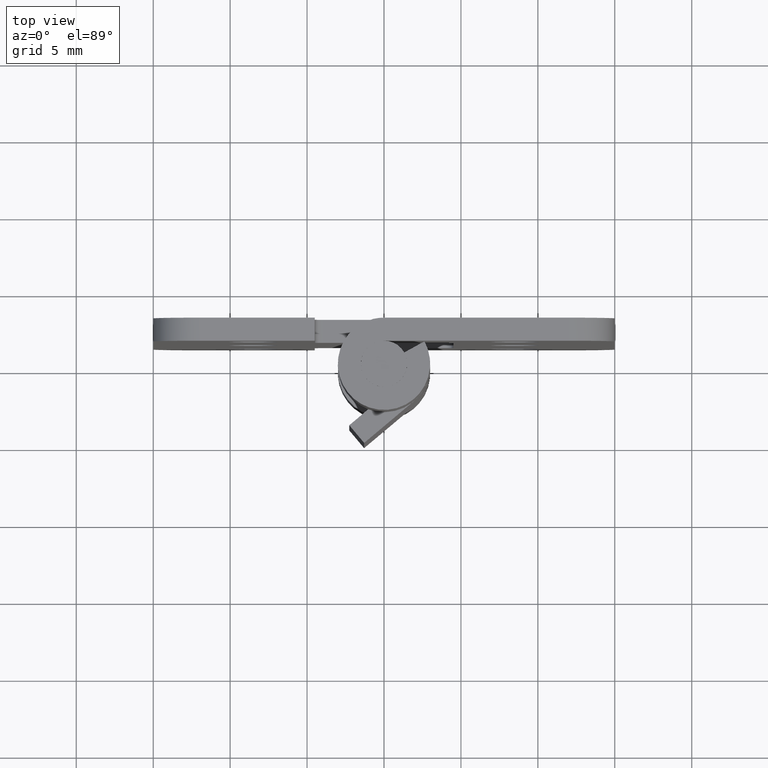
[diagram: clean part render]
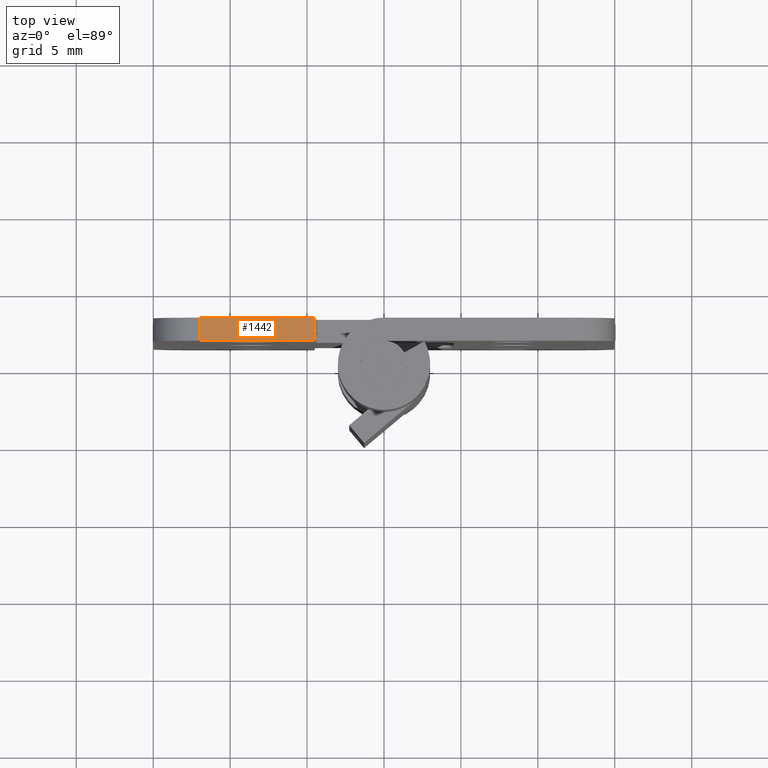
[diagram: same view with one face highlighted and labeled with its STEP entity id]
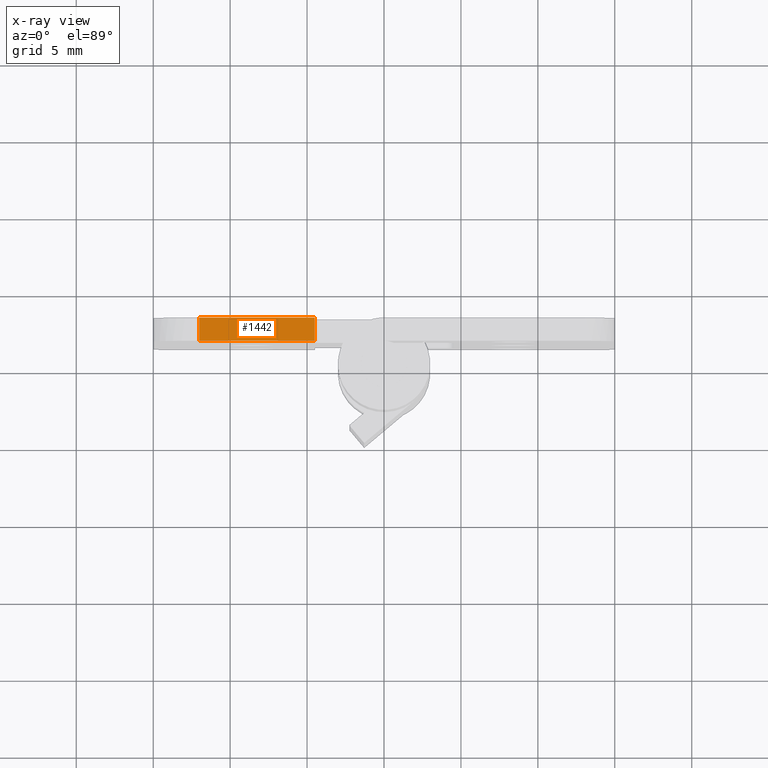
[diagram: x-ray of the same camera — body ghosted, the highlighted face saturated]
A machine part, top view. The second image highlights one B-rep face of the part: STEP entity #1442.
The next image is the same camera in x-ray: the body ghosted, the highlighted face saturated — about 0% of this face is hidden behind the body in this view.
In plain terms, the highlighted face is a freeform B-spline surface patch.
Its self-contained STEP definition (entity closure, byte-faithful):
#855=CARTESIAN_POINT('',(-12.0,1.499999999999946,35.999993000000003));
#856=VERTEX_POINT('',#855);
#872=CARTESIAN_POINT('',(-12.0,3.0,35.999993000000003));
#873=VERTEX_POINT('',#872);
#874=CARTESIAN_POINT('',(-12.0,3.0,35.999993000000003));
#875=CARTESIAN_POINT('',(-12.0,1.499999999999946,35.999993000000003));
#876=QUASI_UNIFORM_CURVE('',1,(#874,#875),.UNSPECIFIED.,.F.,.U.);
#877=EDGE_CURVE('',#873,#856,#876,.T.);
#1352=CARTESIAN_POINT('',(-4.500000000000000,1.499999999999946,35.999993000000003));
#1353=VERTEX_POINT('',#1352);
#1360=CARTESIAN_POINT('',(-4.500000000000000,3.0,35.999993000000003));
#1361=VERTEX_POINT('',#1360);
#1367=CARTESIAN_POINT('',(-4.500000000000000,1.499999999999946,35.999993000000003));
#1368=CARTESIAN_POINT('',(-4.500000000000000,3.0,35.999993000000003));
#1369=QUASI_UNIFORM_CURVE('',1,(#1367,#1368),.UNSPECIFIED.,.F.,.U.);
#1370=EDGE_CURVE('',#1353,#1361,#1369,.T.);
#1423=CARTESIAN_POINT('',(-4.125375014536455,1.425075002907234,35.999993000000003));
#1424=CARTESIAN_POINT('',(-12.374625186629221,1.425075002907234,35.999993000000003));
#1425=CARTESIAN_POINT('',(-4.125375014536455,3.074925037325847,35.999993000000003));
#1426=CARTESIAN_POINT('',(-12.374625186629221,3.074925037325847,35.999993000000003));
#1427=B_SPLINE_SURFACE_WITH_KNOTS('',1,1,((#1423,#1425),(#1424,#1426)),.UNSPECIFIED.,.F.,.F.,.U.,(2,2),(2,2),(0.0,8.249250172092769),(0.041708334948495,0.958291687403247),.UNSPECIFIED.);
#1428=CARTESIAN_POINT('',(-4.500000000000000,3.0,35.999993000000003));
#1429=CARTESIAN_POINT('',(-12.0,3.0,35.999993000000003));
#1430=QUASI_UNIFORM_CURVE('',1,(#1428,#1429),.UNSPECIFIED.,.F.,.U.);
#1431=EDGE_CURVE('',#1361,#873,#1430,.T.);
#1432=ORIENTED_EDGE('',*,*,#1431,.T.);
#1433=ORIENTED_EDGE('',*,*,#877,.T.);
#1434=CARTESIAN_POINT('',(-4.500000000000000,1.499999999999946,35.999993000000003));
#1435=CARTESIAN_POINT('',(-12.0,1.499999999999946,35.999993000000003));
#1436=QUASI_UNIFORM_CURVE('',1,(#1434,#1435),.UNSPECIFIED.,.F.,.U.);
#1437=EDGE_CURVE('',#1353,#856,#1436,.T.);
#1438=ORIENTED_EDGE('',*,*,#1437,.F.);
#1439=ORIENTED_EDGE('',*,*,#1370,.T.);
#1440=EDGE_LOOP('',(#1432,#1433,#1438,#1439));
#1441=FACE_OUTER_BOUND('',#1440,.T.);
#1442=ADVANCED_FACE('',(#1441),#1427,.F.);